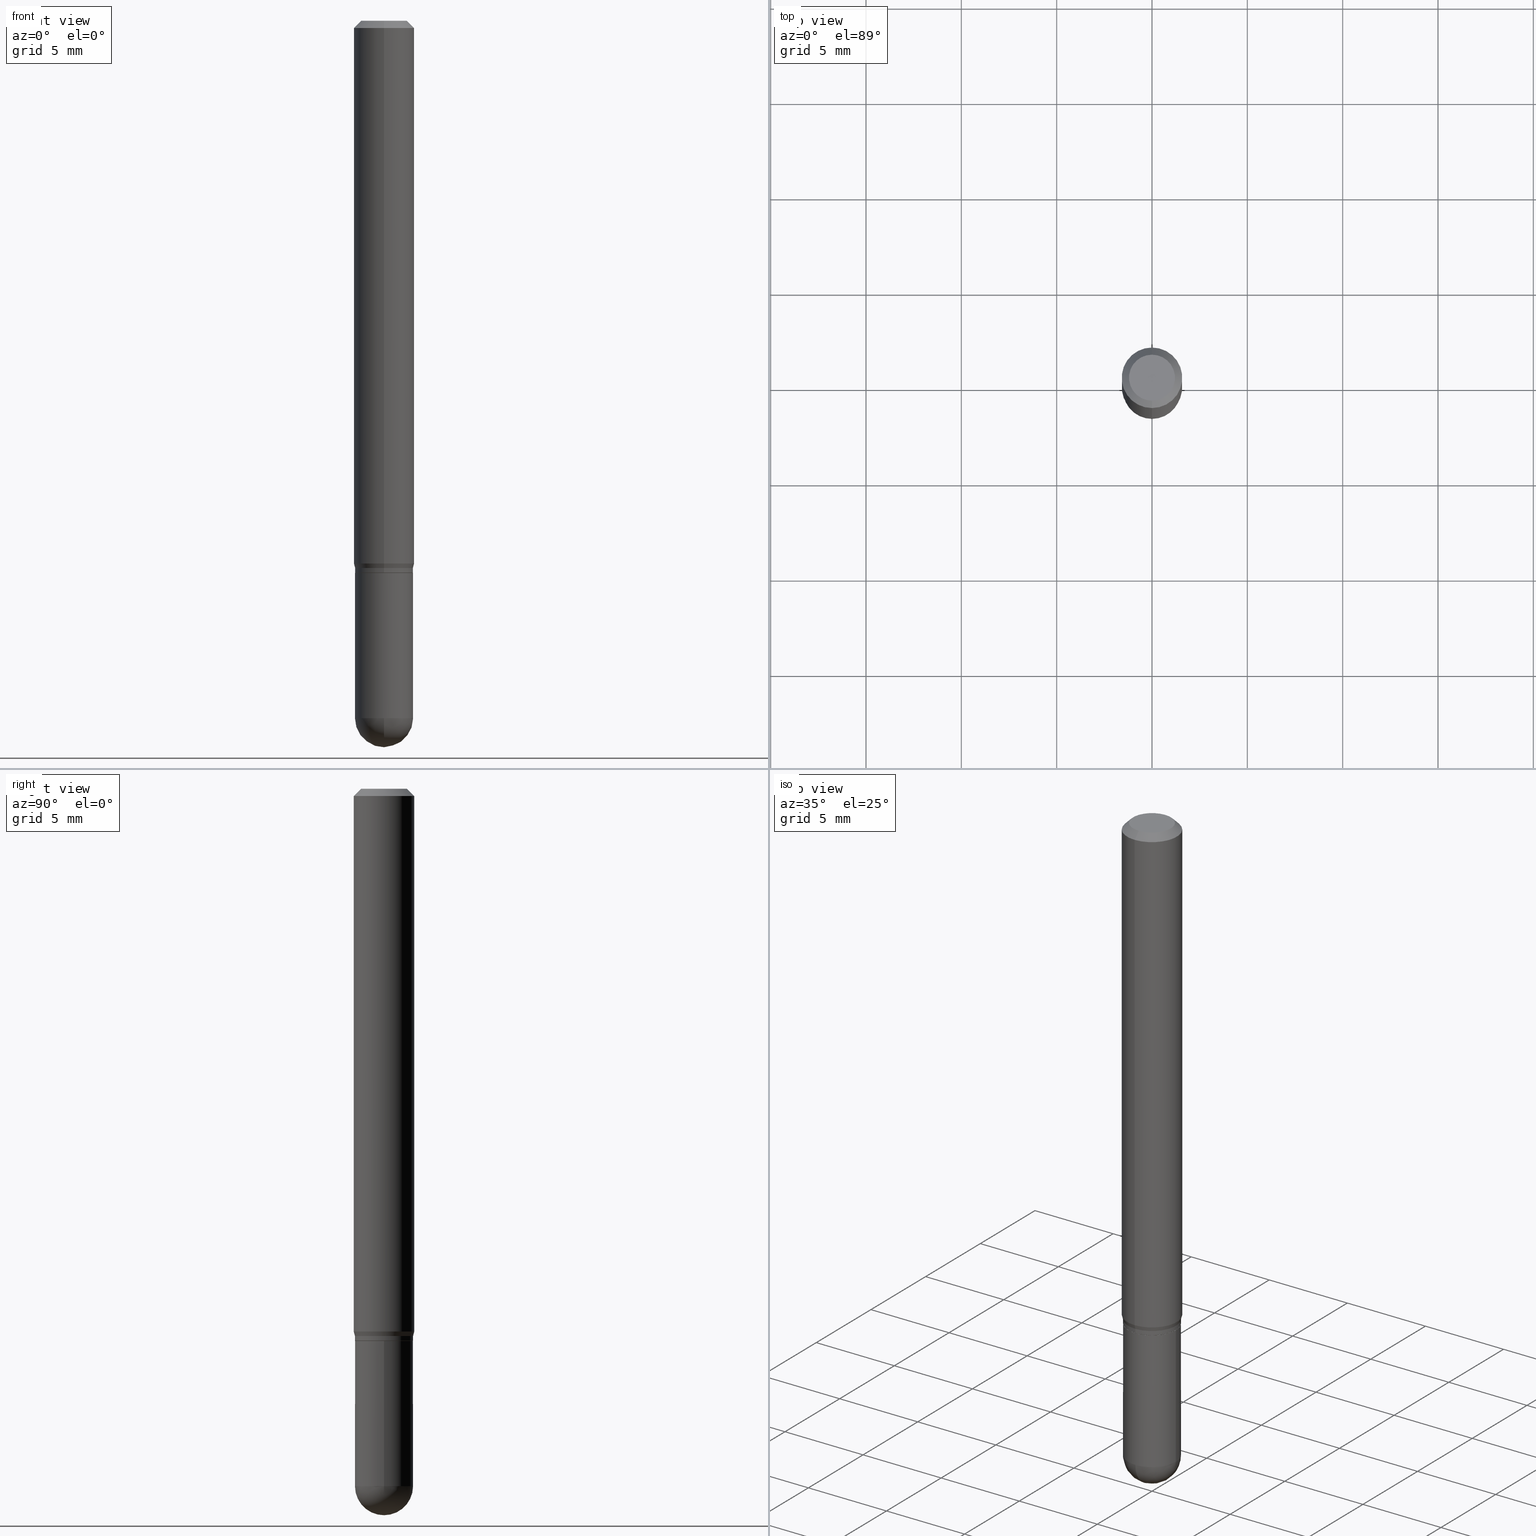
[diagram: canonical four-view strip — front | top / right | iso, engineering-drawing reading convention]
A machine part, canonical four-view strip (front | top / right | iso — engineering-drawing reading convention). The complete STEP part file that produces these views, byte-faithful:
ISO-10303-21;
HEADER;
FILE_DESCRIPTION (( 'STEP AP203' ),
    '1' );
FILE_NAME ('00880.STEP',
    '2024-03-07T18:39:57',
    ( '' ),
    ( '' ),
    'SwSTEP 2.0',
    'SolidWorks 2023',
    '' );
FILE_SCHEMA (( 'CONFIG_CONTROL_DESIGN' ));
ENDSEC;

DATA;
#1 = DIRECTION ( 'NONE',  ( 5.024295867788190974E-15, 0.7071067811865681119, 0.7071067811865270336 ) ) ;
#2 = CIRCLE ( 'NONE', #315, 0.05999999999999995615 ) ;
#3 = ORIENTED_EDGE ( 'NONE', *, *, #213, .T. ) ;
#4 = EDGE_CURVE ( 'NONE', #70, #86, #448, .T. ) ;
#5 = EDGE_LOOP ( 'NONE', ( #34, #107, #204, #280 ) ) ;
#6 = DIRECTION ( 'NONE',  ( -6.982962677686265922E-15, -1.000000000000000000, 4.553079989440434359E-15 ) ) ;
#7 = CIRCLE ( 'NONE', #22, 0.06250000000000000000 ) ;
#8 = VECTOR ( 'NONE', #494, 39.37007874015748143 ) ;
#9 = EDGE_CURVE ( 'NONE', #66, #164, #314, .T. ) ;
#10 = APPLICATION_CONTEXT ( 'configuration controlled 3d designs of mechanical parts and assemblies' ) ;
#11 = ORIENTED_EDGE ( 'NONE', *, *, #277, .F. ) ;
#12 = CARTESIAN_POINT ( 'NONE',  ( 2.788007565382676486E-29, -3.980040799520567158E-15, -1.140000000000000124 ) ) ;
#13 = ORIENTED_EDGE ( 'NONE', *, *, #277, .T. ) ;
#14 = PLANE ( 'NONE',  #305 ) ;
#15 = CIRCLE ( 'NONE', #23, 0.06250000000000000000 ) ;
#16 = DIRECTION ( 'NONE',  ( -2.445620671388312269E-29, 3.491263859228567350E-15, 1.000000000000000000 ) ) ;
#17 = DIRECTION ( 'NONE',  ( -6.982962677686265922E-15, -1.000000000000000000, 3.491263859228566956E-15 ) ) ;
#18 = CARTESIAN_POINT ( 'NONE',  ( 4.189777606612038494E-16, 0.05999999999999602179, -1.140000000000000346 ) ) ;
#19 = DIRECTION ( 'NONE',  ( 0.000000000000000000, 0.000000000000000000, 1.000000000000000000 ) ) ;
#20 = DIRECTION ( 'NONE',  ( 1.000000000000000000, -6.982962677686266711E-15, 0.000000000000000000 ) ) ;
#21 = EDGE_CURVE ( 'NONE', #402, #235, #7, .T. ) ;
#22 = AXIS2_PLACEMENT_3D ( 'NONE', #129, #252, #48 ) ;
#23 = AXIS2_PLACEMENT_3D ( 'NONE', #65, #383, #63 ) ;
#24 = DIRECTION ( 'NONE',  ( 1.000000000000000000, -6.982962677686268288E-15, 0.000000000000000000 ) ) ;
#25 = PERSON_AND_ORGANIZATION ( #304, #41 ) ;
#26 = FACE_OUTER_BOUND ( 'NONE', #409, .T. ) ;
#27 = DIRECTION ( 'NONE',  ( -6.982962677686266711E-15, -1.000000000000000000, 3.491263859228568139E-15 ) ) ;
#28 = CC_DESIGN_PERSON_AND_ORGANIZATION_ASSIGNMENT ( #219, #293, ( #31 ) ) ;
#29 = ADVANCED_FACE ( 'NONE', ( #248 ), #14, .F. ) ;
#30 = DIRECTION ( 'NONE',  ( -2.445468806185136597E-29, 3.491481338843145583E-15, 1.000000000000000000 ) ) ;
#31 = PRODUCT ( '00880', '00880', '', ( #286 ) ) ;
#32 = VERTEX_POINT ( 'NONE', #335 ) ;
#33 = CARTESIAN_POINT ( 'NONE',  ( 2.788007565382676486E-29, -3.980040799520567158E-15, -1.140000000000000124 ) ) ;
#34 = ORIENTED_EDGE ( 'NONE', *, *, #365, .F. ) ;
#35 = ORIENTED_EDGE ( 'NONE', *, *, #90, .T. ) ;
#36 = CARTESIAN_POINT ( 'NONE',  ( 2.763551358668793427E-29, -3.945128160928281627E-15, -1.130000000000000115 ) ) ;
#37 = AXIS2_PLACEMENT_3D ( 'NONE', #469, #142, #268 ) ;
#38 = ORIENTED_EDGE ( 'NONE', *, *, #120, .F. ) ;
#39 = CARTESIAN_POINT ( 'NONE',  ( 0.05999999999999999778, -4.399266486942362543E-15, -1.140000000000000124 ) ) ;
#40 = ORIENTED_EDGE ( 'NONE', *, *, #471, .T. ) ;
#41 = ORGANIZATION ( 'UNSPECIFIED', 'UNSPECIFIED', '' ) ;
#42 = EDGE_LOOP ( 'NONE', ( #167, #200, #394, #493 ) ) ;
#43 = ORIENTED_EDGE ( 'NONE', *, *, #62, .F. ) ;
#44 = ORIENTED_EDGE ( 'NONE', *, *, #266, .F. ) ;
#45 = ORIENTED_EDGE ( 'NONE', *, *, #266, .T. ) ;
#46 = EDGE_CURVE ( 'NONE', #164, #32, #371, .T. ) ;
#47 = PRODUCT_DEFINITION_FORMATION_WITH_SPECIFIED_SOURCE ( 'ANY', '', #31, .NOT_KNOWN. ) ;
#48 = DIRECTION ( 'NONE',  ( -6.982962677686265922E-15, -1.000000000000000000, 3.483106191921935554E-15 ) ) ;
#49 = VECTOR ( 'NONE', #95, 39.37007874015748143 ) ;
#50 = ORIENTED_EDGE ( 'NONE', *, *, #193, .F. ) ;
#51 = LINE ( 'NONE', #260, #430 ) ;
#52 = EDGE_CURVE ( 'NONE', #417, #425, #188, .T. ) ;
#53 = DIRECTION ( 'NONE',  ( -2.445620671388312549E-29, 3.491263859228567350E-15, 1.000000000000000000 ) ) ;
#54 = PERSON_AND_ORGANIZATION ( #304, #41 ) ;
#55 = CARTESIAN_POINT ( 'NONE',  ( 0.000000000000000000, 0.000000000000000000, 0.000000000000000000 ) ) ;
#56 = SECURITY_CLASSIFICATION ( '', '', #262 ) ;
#57 = VERTEX_POINT ( 'NONE', #215 ) ;
#58 = VECTOR ( 'NONE', #472, 39.37007874015748143 ) ;
#59 = APPROVAL_DATE_TIME ( #419, #323 ) ;
#60 = APPLICATION_PROTOCOL_DEFINITION ( 'international standard', 'config_control_design', 1994, #10 ) ;
#61 = CARTESIAN_POINT ( 'NONE',  ( 0.06000000000000001166, -4.922988687768835701E-15, -1.440000000000000169 ) ) ;
#62 = EDGE_CURVE ( 'NONE', #86, #402, #440, .T. ) ;
#63 = DIRECTION ( 'NONE',  ( -6.982962677686265922E-15, -1.000000000000000000, 3.483106191921935554E-15 ) ) ;
#64 = COORDINATED_UNIVERSAL_TIME_OFFSET ( 5, 0, .BEHIND. ) ;
#65 = CARTESIAN_POINT ( 'NONE',  ( 3.668431007082470996E-31, -5.236895788842854378E-17, -0.01500000000000000812 ) ) ;
#66 = VERTEX_POINT ( 'NONE', #172 ) ;
#67 = AXIS2_PLACEMENT_3D ( 'NONE', #326, #485, #124 ) ;
#68 = DIRECTION ( 'NONE',  ( 1.000000000000000000, -6.982962677686266711E-15, 0.000000000000000000 ) ) ;
#69 = PRODUCT_DEFINITION_SHAPE ( 'NONE', 'NONE',  #159 ) ;
#70 = VERTEX_POINT ( 'NONE', #492 ) ;
#71 = CARTESIAN_POINT ( 'NONE',  ( 4.364351673553919652E-16, 0.06249999999999995143, -0.01500000000000022669 ) ) ;
#72 = ADVANCED_FACE ( 'NONE', ( #79 ), #131, .F. ) ;
#73 = EDGE_LOOP ( 'NONE', ( #470, #352, #45, #434 ) ) ;
#74 = ORIENTED_EDGE ( 'NONE', *, *, #249, .T. ) ;
#75 = CIRCLE ( 'NONE', #475, 0.06000000000000001166 ) ;
#76 = ORIENTED_EDGE ( 'NONE', *, *, #249, .F. ) ;
#77 = ADVANCED_FACE ( 'NONE', ( #452 ), #294, .T. ) ;
#78 = EDGE_CURVE ( 'NONE', #194, #476, #367, .T. ) ;
#79 = FACE_OUTER_BOUND ( 'NONE', #317, .T. ) ;
#80 = DIRECTION ( 'NONE',  ( -1.000000000000000000, 7.105427357601001070E-15, -4.926315508542082329E-29 ) ) ;
#81 = AXIS2_PLACEMENT_3D ( 'NONE', #370, #334, #85 ) ;
#82 = VERTEX_POINT ( 'NONE', #61 ) ;
#83 = CIRCLE ( 'NONE', #306, 0.05999999999999995615 ) ;
#84 = ORIENTED_EDGE ( 'NONE', *, *, #210, .T. ) ;
#85 = DIRECTION ( 'NONE',  ( 6.982962677686265922E-15, 1.000000000000000000, -3.483106191921935554E-15 ) ) ;
#86 = VERTEX_POINT ( 'NONE', #187 ) ;
#87 = CARTESIAN_POINT ( 'NONE',  ( 3.840629472727447874E-16, 0.04749999999999999362, -1.747056831868805136E-16 ) ) ;
#88 = DIRECTION ( 'NONE',  ( 1.000000000000000000, -6.982962677686266711E-15, 0.000000000000000000 ) ) ;
#89 = VECTOR ( 'NONE', #145, 39.37007874015748143 ) ;
#90 = EDGE_CURVE ( 'NONE', #247, #32, #214, .T. ) ;
#91 = ADVANCED_FACE ( 'NONE', ( #336 ), #222, .T. ) ;
#92 = CARTESIAN_POINT ( 'NONE',  ( 3.521475080906597305E-29, -5.027733127934130649E-15, -1.440000000000000169 ) ) ;
#93 = LINE ( 'NONE', #501, #8 ) ;
#94 = DATE_AND_TIME ( #138, #474 ) ;
#95 = DIRECTION ( 'NONE',  ( -2.445620671388312269E-29, 3.491263859228567350E-15, 1.000000000000000000 ) ) ;
#96 = DIRECTION ( 'NONE',  ( -2.445468806185136877E-29, 3.491481338843145188E-15, 1.000000000000000000 ) ) ;
#97 = COORDINATED_UNIVERSAL_TIME_OFFSET ( 5, 0, .BEHIND. ) ;
#98 = DIRECTION ( 'NONE',  ( -2.445620671388312549E-29, 3.491263859228567350E-15, 1.000000000000000000 ) ) ;
#99 = APPROVAL_PERSON_ORGANIZATION ( #54, #323, #141 ) ;
#100 = ADVANCED_FACE ( 'NONE', ( #344 ), #102, .T. ) ;
#101 = CARTESIAN_POINT ( 'NONE',  ( 4.245492846166878976E-16, 0.05949999999999602135, -1.140000000000000346 ) ) ;
#102 = CONICAL_SURFACE ( 'NONE', #189, 0.06000000000000019901, 0.2617993877991505181 ) ;
#103 = PERSON_AND_ORGANIZATION_ROLE ( 'design_supplier' ) ;
#104 = DIRECTION ( 'NONE',  ( -6.982962677686265922E-15, -1.000000000000000000, 3.491263859228567350E-15 ) ) ;
#105 = DATE_AND_TIME ( #505, #127 ) ;
#106 = CARTESIAN_POINT ( 'NONE',  ( 4.352074256530896070E-16, 0.05999999999999625078, -1.130000000000000338 ) ) ;
#107 = ORIENTED_EDGE ( 'NONE', *, *, #230, .T. ) ;
#108 = DIRECTION ( 'NONE',  ( -6.982962677686265922E-15, -1.000000000000000000, 4.591341165822291216E-15 ) ) ;
#109 = LOCAL_TIME ( 13, 39, 57.00000000000000000, #346 ) ;
#110 = EDGE_LOOP ( 'NONE', ( #40, #289, #504, #43 ) ) ;
#111 = VECTOR ( 'NONE', #16, 39.37007874015748143 ) ;
#112 = AXIS2_PLACEMENT_3D ( 'NONE', #239, #229, #195 ) ;
#113 = FACE_OUTER_BOUND ( 'NONE', #42, .T. ) ;
#114 = ORIENTED_EDGE ( 'NONE', *, *, #78, .T. ) ;
#115 = FACE_OUTER_BOUND ( 'NONE', #356, .T. ) ;
#116 = ORIENTED_EDGE ( 'NONE', *, *, #332, .F. ) ;
#117 = CARTESIAN_POINT ( 'NONE',  ( -4.263256414560247449E-16, -0.06000000000000501460, -1.439999999999999947 ) ) ;
#118 = DIRECTION ( 'NONE',  ( -6.982962677686265922E-15, -1.000000000000000000, 4.591341165822291216E-15 ) ) ;
#119 = APPROVAL ( #308, 'UNSPECIFIED' ) ;
#120 = EDGE_CURVE ( 'NONE', #32, #247, #156, .T. ) ;
#121 = ORIENTED_EDGE ( 'NONE', *, *, #46, .T. ) ;
#122 = CARTESIAN_POINT ( 'NONE',  ( 3.521475080906597305E-29, -5.027733127934130649E-15, -1.440000000000000169 ) ) ;
#123 = CONICAL_SURFACE ( 'NONE', #350, 0.06250000000000000000, 0.7853981633974483900 ) ;
#124 = DIRECTION ( 'NONE',  ( -6.982962677686265922E-15, -1.000000000000000000, 4.591341165822291216E-15 ) ) ;
#125 = EDGE_LOOP ( 'NONE', ( #153, #473, #431, #50 ) ) ;
#126 = ORIENTED_EDGE ( 'NONE', *, *, #471, .F. ) ;
#127 = LOCAL_TIME ( 13, 39, 57.00000000000000000, #376 ) ;
#128 = AXIS2_PLACEMENT_3D ( 'NONE', #333, #488, #399 ) ;
#129 = CARTESIAN_POINT ( 'NONE',  ( 3.668431007082470996E-31, -5.236895788842854378E-17, -0.01500000000000000812 ) ) ;
#130 = CARTESIAN_POINT ( 'NONE',  ( 0.06000000000000001166, -4.189777606611760914E-16, 2.925706065477562106E-30 ) ) ;
#131 = PLANE ( 'NONE',  #401 ) ;
#132 = EDGE_CURVE ( 'NONE', #194, #402, #342, .T. ) ;
#133 = APPROVAL_ROLE ( '' ) ;
#134 = FACE_OUTER_BOUND ( 'NONE', #407, .T. ) ;
#135 = CYLINDRICAL_SURFACE ( 'NONE', #37, 0.06000000000000001166 ) ;
#136 = AXIS2_PLACEMENT_3D ( 'NONE', #459, #139, #181 ) ;
#137 = DIRECTION ( 'NONE',  ( -2.445620671388312549E-29, 3.491263859228567350E-15, 1.000000000000000000 ) ) ;
#138 = CALENDAR_DATE ( 2024, 7, 3 ) ;
#139 = DIRECTION ( 'NONE',  ( -2.445620671388312549E-29, 3.491263859228567350E-15, 1.000000000000000000 ) ) ;
#140 = CARTESIAN_POINT ( 'NONE',  ( 0.000000000000000000, 0.000000000000000000, 0.000000000000000000 ) ) ;
#141 = APPROVAL_ROLE ( '' ) ;
#142 = DIRECTION ( 'NONE',  ( -2.445468806185136597E-29, 3.491481338843145583E-15, 1.000000000000000000 ) ) ;
#143 = CARTESIAN_POINT ( 'NONE',  ( 2.763551358668793427E-29, -3.945128160928281627E-15, -1.130000000000000115 ) ) ;
#144 = APPROVAL_DATE_TIME ( #105, #119 ) ;
#145 = DIRECTION ( 'NONE',  ( -4.851104656540964275E-15, -0.7071067811865500152, -0.7071067811865450192 ) ) ;
#146 = EDGE_CURVE ( 'NONE', #57, #235, #349, .T. ) ;
#147 = AXIS2_PLACEMENT_3D ( 'NONE', #338, #290, #450 ) ;
#148 = AXIS2_PLACEMENT_3D ( 'NONE', #481, #357, #198 ) ;
#149 = APPLICATION_PROTOCOL_DEFINITION ( 'international standard', 'config_control_design', 1994, #339 ) ;
#150 = CARTESIAN_POINT ( 'NONE',  ( 2.787834439051055989E-29, -3.980288726281186698E-15, -1.140000000000000124 ) ) ;
#151 = ORIENTED_EDGE ( 'NONE', *, *, #174, .F. ) ;
#152 = FACE_OUTER_BOUND ( 'NONE', #412, .T. ) ;
#153 = ORIENTED_EDGE ( 'NONE', *, *, #146, .F. ) ;
#154 = APPROVAL_PERSON_ORGANIZATION ( #343, #119, #468 ) ;
#155 = ORIENTED_EDGE ( 'NONE', *, *, #132, .F. ) ;
#156 = CIRCLE ( 'NONE', #296, 0.05999999999999999778 ) ;
#157 = VERTEX_POINT ( 'NONE', #106 ) ;
#158 = CARTESIAN_POINT ( 'NONE',  ( -4.154862793223048825E-16, -0.05950000000000398026, -1.139999999999999902 ) ) ;
#159 = PRODUCT_DEFINITION ( 'UNKNOWN', '', #47, #496 ) ;
#160 = DIRECTION ( 'NONE',  ( -6.982962677686265922E-15, -1.000000000000000000, 4.553079989440434359E-15 ) ) ;
#161 = ORIENTED_EDGE ( 'NONE', *, *, #9, .T. ) ;
#162 = CARTESIAN_POINT ( 'NONE',  ( 2.786784755046982108E-29, -3.978295167590952960E-15, -1.139500000000000179 ) ) ;
#163 = VECTOR ( 'NONE', #1, 39.37007874015748143 ) ;
#164 = VERTEX_POINT ( 'NONE', #263 ) ;
#165 = CC_DESIGN_DATE_AND_TIME_ASSIGNMENT ( #94, #414, ( #56 ) ) ;
#166 = ADVANCED_FACE ( 'NONE', ( #503 ), #135, .T. ) ;
#167 = ORIENTED_EDGE ( 'NONE', *, *, #78, .F. ) ;
#168 = CIRCLE ( 'NONE', #464, 0.06000000000000006023 ) ;
#169 =( CONVERSION_BASED_UNIT ( 'INCH', #254 ) LENGTH_UNIT ( ) NAMED_UNIT ( #408 ) );
#170 = VECTOR ( 'NONE', #285, 39.37007874015748854 ) ;
#171 = DIRECTION ( 'NONE',  ( -2.445468806185136877E-29, 3.491481338843145188E-15, 1.000000000000000000 ) ) ;
#172 = CARTESIAN_POINT ( 'NONE',  ( 4.189777606612110478E-16, 0.05999999999999495320, -1.440000000000000391 ) ) ;
#173 = CC_DESIGN_PERSON_AND_ORGANIZATION_ASSIGNMENT ( #423, #340, ( #56 ) ) ;
#174 = EDGE_CURVE ( 'NONE', #57, #86, #403, .T. ) ;
#175 = LINE ( 'NONE', #130, #341 ) ;
#176 = CARTESIAN_POINT ( 'NONE',  ( 2.763551358668793427E-29, -3.945128160928281627E-15, -1.130000000000000115 ) ) ;
#177 = DIRECTION ( 'NONE',  ( -6.982962677686265922E-15, -1.000000000000000000, 4.553079989440423315E-15 ) ) ;
#178 = DATE_AND_TIME ( #184, #109 ) ;
#179 = DIRECTION ( 'NONE',  ( 1.000000000000000000, 0.000000000000000000, 0.000000000000000000 ) ) ;
#180 = LOCAL_TIME ( 13, 39, 57.00000000000000000, #454 ) ;
#181 = DIRECTION ( 'NONE',  ( -6.982962677686266711E-15, -1.000000000000000000, 3.491263859228568139E-15 ) ) ;
#182 = CARTESIAN_POINT ( 'NONE',  ( 3.516344083171520973E-29, -5.035081008729014505E-15, -1.440000000000000169 ) ) ;
#183 = DIRECTION ( 'NONE',  ( 1.000000000000000000, -6.982962677686268288E-15, 0.000000000000000000 ) ) ;
#184 = CALENDAR_DATE ( 2024, 7, 3 ) ;
#185 = ADVANCED_FACE ( 'NONE', ( #467 ), #457, .T. ) ;
#186 = CYLINDRICAL_SURFACE ( 'NONE', #360, 0.06000000000000001166 ) ;
#187 = CARTESIAN_POINT ( 'NONE',  ( -4.364351673553640100E-16, -0.06250000000000388578, -1.120669872981078452 ) ) ;
#188 = CIRCLE ( 'NONE', #128, 0.05949999999999999734 ) ;
#189 = AXIS2_PLACEMENT_3D ( 'NONE', #176, #98, #228 ) ;
#190 = DATE_TIME_ROLE ( 'creation_date' ) ;
#191 =( NAMED_UNIT ( * ) SI_UNIT ( $, .STERADIAN. ) SOLID_ANGLE_UNIT ( ) );
#192 = CARTESIAN_POINT ( 'NONE',  ( 3.665637710410167850E-29, -5.240895948662160894E-15, -1.500000000000000222 ) ) ;
#193 = EDGE_CURVE ( 'NONE', #235, #402, #15, .T. ) ;
#194 = VERTEX_POINT ( 'NONE', #231 ) ;
#195 = DIRECTION ( 'NONE',  ( 6.982962677686265922E-15, 1.000000000000000000, -4.553079989440442247E-15 ) ) ;
#196 = DIRECTION ( 'NONE',  ( -2.445620671388312549E-29, 3.491263859228567350E-15, 1.000000000000000000 ) ) ;
#197 = ORIENTED_EDGE ( 'NONE', *, *, #52, .F. ) ;
#198 = DIRECTION ( 'NONE',  ( 1.000000000000000000, -6.982962677686266711E-15, 0.000000000000000000 ) ) ;
#199 = LINE ( 'NONE', #319, #163 ) ;
#200 = ORIENTED_EDGE ( 'NONE', *, *, #132, .T. ) ;
#201 = AXIS2_PLACEMENT_3D ( 'NONE', #33, #439, #313 ) ;
#202 = ADVANCED_FACE ( 'NONE', ( #385 ), #499, .T. ) ;
#203 = ORIENTED_EDGE ( 'NONE', *, *, #258, .T. ) ;
#204 = ORIENTED_EDGE ( 'NONE', *, *, #210, .F. ) ;
#205 = CARTESIAN_POINT ( 'NONE',  ( 4.263256414560887906E-16, 0.05999999999999614669, -1.139500000000000401 ) ) ;
#206 = AXIS2_PLACEMENT_3D ( 'NONE', #413, #421, #378 ) ;
#207 = CONICAL_SURFACE ( 'NONE', #331, 0.05949999999999999734, 0.7853981633974739252 ) ;
#208 = DIRECTION ( 'NONE',  ( 2.438088387897960049E-29, -3.491481338843145188E-15, -1.000000000000000000 ) ) ;
#209 = DIRECTION ( 'NONE',  ( -7.105427357601001070E-15, -1.000000000000000000, 0.000000000000000000 ) ) ;
#210 = EDGE_CURVE ( 'NONE', #82, #66, #420, .T. ) ;
#211 = CARTESIAN_POINT ( 'NONE',  ( 3.316907271900976096E-16, 0.04749999999999999362, -1.702703582501187023E-16 ) ) ;
#212 = DIRECTION ( 'NONE',  ( 6.982962677686265922E-15, 1.000000000000000000, -3.491263859228567350E-15 ) ) ;
#213 = EDGE_CURVE ( 'NONE', #157, #57, #51, .T. ) ;
#214 = CIRCLE ( 'NONE', #429, 0.05999999999999999778 ) ;
#215 = CARTESIAN_POINT ( 'NONE',  ( 4.440892098500901277E-16, 0.06249999999999610728, -1.120669872981078896 ) ) ;
#216 = CIRCLE ( 'NONE', #233, 0.04749999999999999362 ) ;
#217 = CARTESIAN_POINT ( 'NONE',  ( 3.521475080906597305E-29, -5.027733127934130649E-15, -1.440000000000000169 ) ) ;
#218 = DIRECTION ( 'NONE',  ( 6.982962677686265922E-15, 1.000000000000000000, -4.553079989440442247E-15 ) ) ;
#219 = PERSON_AND_ORGANIZATION ( #304, #41 ) ;
#220 = CARTESIAN_POINT ( 'NONE',  ( 2.787834439051055989E-29, -3.980288726281186698E-15, -1.140000000000000124 ) ) ;
#221 = APPROVAL_STATUS ( 'not_yet_approved' ) ;
#222 = CYLINDRICAL_SURFACE ( 'NONE', #206, 0.06000000000000012962 ) ;
#223 = VECTOR ( 'NONE', #171, 39.37007874015748143 ) ;
#224 = EDGE_LOOP ( 'NONE', ( #278, #114 ) ) ;
#225 = CARTESIAN_POINT ( 'NONE',  ( 3.516344083171520973E-29, -5.035081008729014505E-15, -1.440000000000000169 ) ) ;
#226 = CARTESIAN_POINT ( 'NONE',  ( -4.154862793223048825E-16, -0.05950000000000398026, -1.139999999999999902 ) ) ;
#227 = PERSON_AND_ORGANIZATION ( #304, #41 ) ;
#228 = DIRECTION ( 'NONE',  ( -6.982962677686265922E-15, -1.000000000000000000, 4.553079989440423315E-15 ) ) ;
#229 = DIRECTION ( 'NONE',  ( -1.000000000000000000, 6.982962677686265922E-15, -4.883557194083112340E-29 ) ) ;
#230 = EDGE_CURVE ( 'NONE', #245, #66, #2, .T. ) ;
#231 = CARTESIAN_POINT ( 'NONE',  ( -3.773273898774340269E-16, -0.04749999999999999362, 1.569643834398333176E-16 ) ) ;
#232 = EDGE_LOOP ( 'NONE', ( #368, #203, #479, #374, #38 ) ) ;
#233 = AXIS2_PLACEMENT_3D ( 'NONE', #382, #137, #27 ) ;
#234 = CARTESIAN_POINT ( 'NONE',  ( -4.189777606611768802E-16, -0.06000000000000012962, 2.094758315537144710E-16 ) ) ;
#235 = VERTEX_POINT ( 'NONE', #380 ) ;
#236 = EDGE_LOOP ( 'NONE', ( #446, #197 ) ) ;
#237 = CC_DESIGN_APPROVAL ( #298, ( #47 ) ) ;
#238 = ORIENTED_EDGE ( 'NONE', *, *, #489, .F. ) ;
#239 = CARTESIAN_POINT ( 'NONE',  ( 3.516344083171520973E-29, -5.035081008729014505E-15, -1.440000000000000169 ) ) ;
#240 = ADVANCED_FACE ( 'NONE', ( #26 ), #186, .T. ) ;
#241 = AXIS2_PLACEMENT_3D ( 'NONE', #217, #487, #88 ) ;
#242 = ORIENTED_EDGE ( 'NONE', *, *, #426, .F. ) ;
#243 = DIRECTION ( 'NONE',  ( -6.982962677686265922E-15, -1.000000000000000000, 4.553079989440423315E-15 ) ) ;
#244 = MANIFOLD_SOLID_BREP ( 'Body-Move/Copy2[1]', #443 ) ;
#245 = VERTEX_POINT ( 'NONE', #192 ) ;
#246 =( NAMED_UNIT ( * ) PLANE_ANGLE_UNIT ( ) SI_UNIT ( $, .RADIAN. ) );
#247 = VERTEX_POINT ( 'NONE', #39 ) ;
#248 = FACE_OUTER_BOUND ( 'NONE', #224, .T. ) ;
#249 = EDGE_CURVE ( 'NONE', #70, #157, #281, .T. ) ;
#250 = ORIENTED_EDGE ( 'NONE', *, *, #365, .T. ) ;
#251 = CC_DESIGN_APPROVAL ( #323, ( #56 ) ) ;
#252 = DIRECTION ( 'NONE',  ( -2.445620671388312549E-29, 3.491263859228567350E-15, 1.000000000000000000 ) ) ;
#253 = AXIS2_PLACEMENT_3D ( 'NONE', #36, #196, #282 ) ;
#254 = LENGTH_MEASURE_WITH_UNIT ( LENGTH_MEASURE( 0.02539999999999999897 ), #328 );
#255 = DIRECTION ( 'NONE',  ( -2.445468806185136597E-29, 3.491481338843145583E-15, 1.000000000000000000 ) ) ;
#256 = DATE_AND_TIME ( #465, #180 ) ;
#257 = DIRECTION ( 'NONE',  ( 1.839019923739601893E-15, 0.2588190451025252359, 0.9659258262890670910 ) ) ;
#258 = EDGE_CURVE ( 'NONE', #164, #320, #75, .T. ) ;
#259 = CALENDAR_DATE ( 2024, 7, 3 ) ;
#260 = CARTESIAN_POINT ( 'NONE',  ( 4.263256414560890864E-16, 0.05999999999999625078, -1.130000000000000338 ) ) ;
#261 = AXIS2_PLACEMENT_3D ( 'NONE', #92, #255, #20 ) ;
#262 = SECURITY_CLASSIFICATION_LEVEL ( 'unclassified' ) ;
#263 = CARTESIAN_POINT ( 'NONE',  ( -0.06000000000000001166, -4.077685285651599366E-15, -1.440000000000000169 ) ) ;
#264 = EDGE_CURVE ( 'NONE', #425, #397, #478, .T. ) ;
#265 = FACE_OUTER_BOUND ( 'NONE', #5, .T. ) ;
#266 = EDGE_CURVE ( 'NONE', #397, #70, #388, .T. ) ;
#267 = APPROVAL_STATUS ( 'not_yet_approved' ) ;
#268 = DIRECTION ( 'NONE',  ( 1.000000000000000000, -6.982962677686266711E-15, 4.876176775795935793E-29 ) ) ;
#269 = ORIENTED_EDGE ( 'NONE', *, *, #264, .F. ) ;
#270 = LINE ( 'NONE', #71, #484 ) ;
#271 = AXIS2_PLACEMENT_3D ( 'NONE', #377, #19, #179 ) ;
#272 = AXIS2_PLACEMENT_3D ( 'NONE', #143, #463, #177 ) ;
#273 = ORIENTED_EDGE ( 'NONE', *, *, #52, .T. ) ;
#274 = FACE_OUTER_BOUND ( 'NONE', #438, .T. ) ;
#275 = DIRECTION ( 'NONE',  ( -2.445620671388312549E-29, 3.491263859228567350E-15, 1.000000000000000000 ) ) ;
#276 = ORIENTED_EDGE ( 'NONE', *, *, #4, .F. ) ;
#277 = EDGE_CURVE ( 'NONE', #417, #363, #199, .T. ) ;
#278 = ORIENTED_EDGE ( 'NONE', *, *, #426, .T. ) ;
#279 = DIRECTION ( 'NONE',  ( 2.445620671388312549E-29, -3.491263859228567350E-15, -1.000000000000000000 ) ) ;
#280 = ORIENTED_EDGE ( 'NONE', *, *, #375, .F. ) ;
#281 = CIRCLE ( 'NONE', #253, 0.06000000000000019901 ) ;
#282 = DIRECTION ( 'NONE',  ( -6.982962677686265922E-15, -1.000000000000000000, 4.553079989440423315E-15 ) ) ;
#283 = UNCERTAINTY_MEASURE_WITH_UNIT (LENGTH_MEASURE( 1.000000000000000082E-05 ), #169, 'distance_accuracy_value', 'NONE');
#284 = ORIENTED_EDGE ( 'NONE', *, *, #451, .F. ) ;
#285 = DIRECTION ( 'NONE',  ( -1.807323732225331717E-15, -0.2588190451025184080, 0.9659258262890689783 ) ) ;
#286 = MECHANICAL_CONTEXT ( 'NONE', #10, 'mechanical' ) ;
#287 = AXIS2_PLACEMENT_3D ( 'NONE', #300, #462, #303 ) ;
#288 = ORIENTED_EDGE ( 'NONE', *, *, #4, .T. ) ;
#289 = ORIENTED_EDGE ( 'NONE', *, *, #146, .T. ) ;
#290 = DIRECTION ( 'NONE',  ( -2.445620671388312549E-29, 3.491263859228567350E-15, 1.000000000000000000 ) ) ;
#291 = DIRECTION ( 'NONE',  ( -1.000000000000000000, 6.982962677686265922E-15, -4.876176775795935793E-29 ) ) ;
#292 = LOCAL_TIME ( 13, 39, 57.00000000000000000, #97 ) ;
#293 = PERSON_AND_ORGANIZATION_ROLE ( 'design_owner' ) ;
#294 = CONICAL_SURFACE ( 'NONE', #67, 0.05949999999999999734, 0.7853981633974739252 ) ;
#295 = DIRECTION ( 'NONE',  ( -6.982962677686265922E-15, -1.000000000000000000, 4.370956789862821150E-15 ) ) ;
#296 = AXIS2_PLACEMENT_3D ( 'NONE', #150, #309, #24 ) ;
#297 = PERSON_AND_ORGANIZATION ( #304, #41 ) ;
#298 = APPROVAL ( #267, 'UNSPECIFIED' ) ;
#299 = ADVANCED_FACE ( 'NONE', ( #364 ), #362, .F. ) ;
#300 = CARTESIAN_POINT ( 'NONE',  ( 0.000000000000000000, 0.000000000000000000, 0.000000000000000000 ) ) ;
#301 = DIRECTION ( 'NONE',  ( -1.000000000000000000, 6.982962677686265922E-15, -4.883557194083112340E-29 ) ) ;
#302 = DIRECTION ( 'NONE',  ( -2.445620671388312549E-29, 3.491263859228567350E-15, 1.000000000000000000 ) ) ;
#303 = DIRECTION ( 'NONE',  ( -6.982962677686265922E-15, -1.000000000000000000, 3.491263859228567350E-15 ) ) ;
#304 = PERSON ( 'UNSPECIFIED', 'UNSPECIFIED', 'UNSPECIFIED', ('UNSPECIFIED'), ('UNSPECIFIED'), ('UNSPECIFIED') ) ;
#305 = AXIS2_PLACEMENT_3D ( 'NONE', #211, #404, #212 ) ;
#306 = AXIS2_PLACEMENT_3D ( 'NONE', #416, #80, #209 ) ;
#307 = ADVANCED_FACE ( 'NONE', ( #115 ), #207, .T. ) ;
#308 = APPROVAL_STATUS ( 'not_yet_approved' ) ;
#309 = DIRECTION ( 'NONE',  ( -2.445468806185136597E-29, 3.491481338843145583E-15, 1.000000000000000000 ) ) ;
#310 = ORIENTED_EDGE ( 'NONE', *, *, #490, .T. ) ;
#311 = DIRECTION ( 'NONE',  ( -2.445468806185136597E-29, 3.491481338843145583E-15, 1.000000000000000000 ) ) ;
#312 = EDGE_LOOP ( 'NONE', ( #379, #366, #76, #44 ) ) ;
#313 = DIRECTION ( 'NONE',  ( -6.982962677686265922E-15, -1.000000000000000000, 3.491263859228567350E-15 ) ) ;
#314 = CIRCLE ( 'NONE', #241, 0.06000000000000001166 ) ;
#315 = AXIS2_PLACEMENT_3D ( 'NONE', #225, #381, #415 ) ;
#316 = ORIENTED_EDGE ( 'NONE', *, *, #230, .F. ) ;
#317 = EDGE_LOOP ( 'NONE', ( #35, #390 ) ) ;
#318 = CARTESIAN_POINT ( 'NONE',  ( -4.364351673553912750E-16, -0.06250000000000005551, -0.01499999999999979128 ) ) ;
#319 = CARTESIAN_POINT ( 'NONE',  ( 4.227729277772874483E-16, 0.05949999999999602135, -1.140000000000000346 ) ) ;
#320 = VERTEX_POINT ( 'NONE', #117 ) ;
#321 = CARTESIAN_POINT ( 'NONE',  ( 2.763551358668793427E-29, -3.945128160928281627E-15, -1.130000000000000115 ) ) ;
#322 = CC_DESIGN_SECURITY_CLASSIFICATION ( #56, ( #47 ) ) ;
#323 = APPROVAL ( #221, 'UNSPECIFIED' ) ;
#324 = ADVANCED_FACE ( 'NONE', ( #113 ), #123, .T. ) ;
#325 = AXIS2_PLACEMENT_3D ( 'NONE', #182, #301, #218 ) ;
#326 = CARTESIAN_POINT ( 'NONE',  ( 2.788007565382676486E-29, -3.980040799520567158E-15, -1.140000000000000124 ) ) ;
#327 = ORIENTED_EDGE ( 'NONE', *, *, #193, .T. ) ;
#328 =( LENGTH_UNIT ( ) NAMED_UNIT ( * ) SI_UNIT ( $, .METRE. ) );
#329 = ORIENTED_EDGE ( 'NONE', *, *, #90, .F. ) ;
#330 = APPROVAL_PERSON_ORGANIZATION ( #227, #298, #133 ) ;
#331 = AXIS2_PLACEMENT_3D ( 'NONE', #480, #275, #108 ) ;
#332 = EDGE_CURVE ( 'NONE', #397, #363, #393, .T. ) ;
#333 = CARTESIAN_POINT ( 'NONE',  ( 2.788007565382676486E-29, -3.980040799520567158E-15, -1.140000000000000124 ) ) ;
#334 = DIRECTION ( 'NONE',  ( 2.445620671388312549E-29, -3.491263859228567350E-15, -1.000000000000000000 ) ) ;
#335 = CARTESIAN_POINT ( 'NONE',  ( -0.05999999999999999778, -4.077685285651597789E-15, -1.140000000000000124 ) ) ;
#336 = FACE_OUTER_BOUND ( 'NONE', #312, .T. ) ;
#337 = CC_DESIGN_PERSON_AND_ORGANIZATION_ASSIGNMENT ( #25, #498, ( #159 ) ) ;
#338 = CARTESIAN_POINT ( 'NONE',  ( 2.740733407164640186E-29, -3.912554225665108422E-15, -1.120669872981078674 ) ) ;
#339 = APPLICATION_CONTEXT ( 'configuration controlled 3d designs of mechanical parts and assemblies' ) ;
#340 = PERSON_AND_ORGANIZATION_ROLE ( 'classification_officer' ) ;
#341 = VECTOR ( 'NONE', #96, 39.37007874015748143 ) ;
#342 = LINE ( 'NONE', #495, #89 ) ;
#343 = PERSON_AND_ORGANIZATION ( #304, #41 ) ;
#344 = FACE_OUTER_BOUND ( 'NONE', #433, .T. ) ;
#345 = SPHERICAL_SURFACE ( 'NONE', #325, 0.05999999999999995615 ) ;
#346 = COORDINATED_UNIVERSAL_TIME_OFFSET ( 5, 0, .BEHIND. ) ;
#347 = ADVANCED_FACE ( 'NONE', ( #152 ), #410, .T. ) ;
#348 = CARTESIAN_POINT ( 'NONE',  ( 2.740733407164640186E-29, -3.912554225665108422E-15, -1.120669872981078674 ) ) ;
#349 = LINE ( 'NONE', #508, #49 ) ;
#350 = AXIS2_PLACEMENT_3D ( 'NONE', #432, #279, #351 ) ;
#351 = DIRECTION ( 'NONE',  ( 6.982962677686265922E-15, 1.000000000000000000, -3.483106191921935554E-15 ) ) ;
#352 = ORIENTED_EDGE ( 'NONE', *, *, #489, .T. ) ;
#353 = CARTESIAN_POINT ( 'NONE',  ( -4.189777606611479882E-16, -0.06000000000000396683, -1.139499999999999735 ) ) ;
#354 = SHAPE_DEFINITION_REPRESENTATION ( #69, #500 ) ;
#355 = DIRECTION ( 'NONE',  ( -2.445620671388312549E-29, 3.491263859228567350E-15, 1.000000000000000000 ) ) ;
#356 = EDGE_LOOP ( 'NONE', ( #310, #13, #116, #269 ) ) ;
#357 = DIRECTION ( 'NONE',  ( -2.445468806185136597E-29, 3.491481338843145583E-15, 1.000000000000000000 ) ) ;
#358 = EDGE_CURVE ( 'NONE', #476, #235, #270, .T. ) ;
#359 = CLOSED_SHELL ( 'NONE', ( #91, #307, #324, #202, #347, #100, #185, #509, #29, #299, #77, #441 ) ) ;
#360 = AXIS2_PLACEMENT_3D ( 'NONE', #506, #422, #483 ) ;
#361 = EDGE_LOOP ( 'NONE', ( #11, #273, #511, #238 ) ) ;
#362 = PLANE ( 'NONE',  #201 ) ;
#363 = VERTEX_POINT ( 'NONE', #205 ) ;
#364 = FACE_OUTER_BOUND ( 'NONE', #236, .T. ) ;
#365 = EDGE_CURVE ( 'NONE', #245, #320, #83, .T. ) ;
#366 = ORIENTED_EDGE ( 'NONE', *, *, #427, .T. ) ;
#367 = CIRCLE ( 'NONE', #136, 0.04749999999999999362 ) ;
#368 = ORIENTED_EDGE ( 'NONE', *, *, #46, .F. ) ;
#369 = CARTESIAN_POINT ( 'NONE',  ( -0.06000000000000001166, 4.263256414560601944E-16, -2.951361054152943763E-30 ) ) ;
#370 = CARTESIAN_POINT ( 'NONE',  ( 3.668431007082470996E-31, -5.236895788842854378E-17, -0.01500000000000000812 ) ) ;
#371 = LINE ( 'NONE', #369, #223 ) ;
#372 = AXIS2_PLACEMENT_3D ( 'NONE', #321, #355, #243 ) ;
#373 = CARTESIAN_POINT ( 'NONE',  ( -4.364351673553916201E-16, -0.06250000000000000000, 2.182039912017854594E-16 ) ) ;
#374 = ORIENTED_EDGE ( 'NONE', *, *, #451, .T. ) ;
#375 = EDGE_CURVE ( 'NONE', #320, #82, #497, .T. ) ;
#376 = COORDINATED_UNIVERSAL_TIME_OFFSET ( 5, 0, .BEHIND. ) ;
#377 = CARTESIAN_POINT ( 'NONE',  ( 0.000000000000000000, 0.000000000000000000, 0.000000000000000000 ) ) ;
#378 = DIRECTION ( 'NONE',  ( -6.982962677686265922E-15, -1.000000000000000000, 3.491263859228566956E-15 ) ) ;
#379 = ORIENTED_EDGE ( 'NONE', *, *, #332, .T. ) ;
#380 = CARTESIAN_POINT ( 'NONE',  ( 4.440892098500901277E-16, 0.06249999999999995143, -0.01500000000000022669 ) ) ;
#381 = DIRECTION ( 'NONE',  ( 1.000000000000000000, -6.982962677686265922E-15, 4.883557194083112340E-29 ) ) ;
#382 = CARTESIAN_POINT ( 'NONE',  ( 2.169424469933737165E-46, -3.096977931130331649E-32, -8.870649873523574904E-18 ) ) ;
#383 = DIRECTION ( 'NONE',  ( -2.445620671388312549E-29, 3.491263859228567350E-15, 1.000000000000000000 ) ) ;
#384 = CIRCLE ( 'NONE', #418, 0.05949999999999999734 ) ;
#385 = FACE_OUTER_BOUND ( 'NONE', #110, .T. ) ;
#386 = AXIS2_PLACEMENT_3D ( 'NONE', #55, #424, #104 ) ;
#387 = ORIENTED_EDGE ( 'NONE', *, *, #358, .T. ) ;
#388 = LINE ( 'NONE', #234, #58 ) ;
#389 = CC_DESIGN_DATE_AND_TIME_ASSIGNMENT ( #178, #190, ( #159 ) ) ;
#390 = ORIENTED_EDGE ( 'NONE', *, *, #120, .T. ) ;
#391 = ORIENTED_EDGE ( 'NONE', *, *, #9, .F. ) ;
#392 =( GEOMETRIC_REPRESENTATION_CONTEXT ( 3 ) GLOBAL_UNCERTAINTY_ASSIGNED_CONTEXT ( ( #283 ) ) GLOBAL_UNIT_ASSIGNED_CONTEXT ( ( #169, #246, #191 ) ) REPRESENTATION_CONTEXT ( 'NONE', 'WORKASPACE' ) );
#393 = CIRCLE ( 'NONE', #466, 0.06000000000000006023 ) ;
#394 = ORIENTED_EDGE ( 'NONE', *, *, #21, .T. ) ;
#395 = CC_DESIGN_PERSON_AND_ORGANIZATION_ASSIGNMENT ( #297, #458, ( #47 ) ) ;
#396 = ADVANCED_FACE ( 'NONE', ( #265 ), #477, .T. ) ;
#397 = VERTEX_POINT ( 'NONE', #353 ) ;
#398 = MANIFOLD_SOLID_BREP ( 'Body-Move/Copy2[2]', #359 ) ;
#399 = DIRECTION ( 'NONE',  ( -6.982962677686265922E-15, -1.000000000000000000, 4.591341165822291216E-15 ) ) ;
#400 = AXIS2_PLACEMENT_3D ( 'NONE', #140, #53, #17 ) ;
#401 = AXIS2_PLACEMENT_3D ( 'NONE', #18, #208, #291 ) ;
#402 = VERTEX_POINT ( 'NONE', #318 ) ;
#403 = CIRCLE ( 'NONE', #444, 0.06250000000000000000 ) ;
#404 = DIRECTION ( 'NONE',  ( 2.445620671388311989E-29, -3.491263859228567350E-15, -1.000000000000000000 ) ) ;
#405 = PRODUCT_RELATED_PRODUCT_CATEGORY ( 'detail', '', ( #31 ) ) ;
#406 = ADVANCED_FACE ( 'NONE', ( #274 ), #345, .T. ) ;
#407 = EDGE_LOOP ( 'NONE', ( #155, #242, #387, #327 ) ) ;
#408 = DIMENSIONAL_EXPONENTS ( 1.000000000000000000, 0.000000000000000000, 0.000000000000000000, 0.000000000000000000, 0.000000000000000000, 0.000000000000000000, 0.000000000000000000 ) ;
#409 = EDGE_LOOP ( 'NONE', ( #161, #121, #329, #284, #84 ) ) ;
#410 = CONICAL_SURFACE ( 'NONE', #372, 0.06000000000000019901, 0.2617993877991505181 ) ;
#411 = EDGE_CURVE ( 'NONE', #157, #70, #437, .T. ) ;
#412 = EDGE_LOOP ( 'NONE', ( #74, #3, #126, #276 ) ) ;
#413 = CARTESIAN_POINT ( 'NONE',  ( 0.000000000000000000, 0.000000000000000000, 0.000000000000000000 ) ) ;
#414 = DATE_TIME_ROLE ( 'classification_date' ) ;
#415 = DIRECTION ( 'NONE',  ( 6.982962677686265922E-15, 1.000000000000000000, 0.000000000000000000 ) ) ;
#416 = CARTESIAN_POINT ( 'NONE',  ( 3.516344083171520973E-29, -5.035081008729014505E-15, -1.440000000000000169 ) ) ;
#417 = VERTEX_POINT ( 'NONE', #101 ) ;
#418 = AXIS2_PLACEMENT_3D ( 'NONE', #12, #456, #118 ) ;
#419 = DATE_AND_TIME ( #259, #292 ) ;
#420 = CIRCLE ( 'NONE', #261, 0.06000000000000001166 ) ;
#421 = DIRECTION ( 'NONE',  ( -2.445620671388312549E-29, 3.491263859228567350E-15, 1.000000000000000000 ) ) ;
#422 = DIRECTION ( 'NONE',  ( -2.445468806185136597E-29, 3.491481338843145583E-15, 1.000000000000000000 ) ) ;
#423 = PERSON_AND_ORGANIZATION ( #304, #41 ) ;
#424 = DIRECTION ( 'NONE',  ( -2.445620671388312549E-29, 3.491263859228567350E-15, 1.000000000000000000 ) ) ;
#425 = VERTEX_POINT ( 'NONE', #226 ) ;
#426 = EDGE_CURVE ( 'NONE', #476, #194, #216, .T. ) ;
#427 = EDGE_CURVE ( 'NONE', #363, #157, #93, .T. ) ;
#428 = DIRECTION ( 'NONE',  ( 4.937700262164548042E-15, 0.7071067811865451302, -0.7071067811865499042 ) ) ;
#429 = AXIS2_PLACEMENT_3D ( 'NONE', #220, #30, #183 ) ;
#430 = VECTOR ( 'NONE', #257, 39.37007874015748854 ) ;
#431 = ORIENTED_EDGE ( 'NONE', *, *, #62, .T. ) ;
#432 = CARTESIAN_POINT ( 'NONE',  ( 3.668431007082470996E-31, -5.236895788842854378E-17, -0.01500000000000000812 ) ) ;
#433 = EDGE_LOOP ( 'NONE', ( #482, #486, #288, #151 ) ) ;
#434 = ORIENTED_EDGE ( 'NONE', *, *, #411, .F. ) ;
#435 = DIRECTION ( 'NONE',  ( -2.445620671388312549E-29, 3.491263859228567350E-15, 1.000000000000000000 ) ) ;
#436 = CC_DESIGN_APPROVAL ( #119, ( #159 ) ) ;
#437 = CIRCLE ( 'NONE', #272, 0.06000000000000019901 ) ;
#438 = EDGE_LOOP ( 'NONE', ( #316, #250, #512, #391 ) ) ;
#439 = DIRECTION ( 'NONE',  ( -2.445620671388311989E-29, 3.491263859228567350E-15, 1.000000000000000000 ) ) ;
#440 = LINE ( 'NONE', #373, #111 ) ;
#441 = ADVANCED_FACE ( 'NONE', ( #460 ), #491, .T. ) ;
#442 = CARTESIAN_POINT ( 'NONE',  ( -4.189777606611496152E-16, -0.06000000000000414030, -1.129999999999999893 ) ) ;
#443 = CLOSED_SHELL ( 'NONE', ( #240, #406, #72, #396, #166 ) ) ;
#444 = AXIS2_PLACEMENT_3D ( 'NONE', #348, #302, #295 ) ;
#445 = DIRECTION ( 'NONE',  ( -2.445620671388312549E-29, 3.491263859228567350E-15, 1.000000000000000000 ) ) ;
#446 = ORIENTED_EDGE ( 'NONE', *, *, #490, .F. ) ;
#447 = CARTESIAN_POINT ( 'NONE',  ( 2.786784755046982108E-29, -3.978295167590952960E-15, -1.139500000000000179 ) ) ;
#448 = LINE ( 'NONE', #442, #170 ) ;
#449 = CC_DESIGN_PERSON_AND_ORGANIZATION_ASSIGNMENT ( #461, #103, ( #47 ) ) ;
#450 = DIRECTION ( 'NONE',  ( -6.982962677686265922E-15, -1.000000000000000000, 4.370956789862821150E-15 ) ) ;
#451 = EDGE_CURVE ( 'NONE', #82, #247, #175, .T. ) ;
#452 = FACE_OUTER_BOUND ( 'NONE', #361, .T. ) ;
#453 = CIRCLE ( 'NONE', #147, 0.06250000000000000000 ) ;
#454 = COORDINATED_UNIVERSAL_TIME_OFFSET ( 5, 0, .BEHIND. ) ;
#455 = VECTOR ( 'NONE', #510, 39.37007874015748143 ) ;
#456 = DIRECTION ( 'NONE',  ( -2.445620671388312549E-29, 3.491263859228567350E-15, 1.000000000000000000 ) ) ;
#457 = CYLINDRICAL_SURFACE ( 'NONE', #386, 0.06250000000000000000 ) ;
#458 = PERSON_AND_ORGANIZATION_ROLE ( 'creator' ) ;
#459 = CARTESIAN_POINT ( 'NONE',  ( 2.169424469933737165E-46, -3.096977931130331649E-32, -8.870649873523574904E-18 ) ) ;
#460 = FACE_OUTER_BOUND ( 'NONE', #73, .T. ) ;
#461 = PERSON_AND_ORGANIZATION ( #304, #41 ) ;
#462 = DIRECTION ( 'NONE',  ( -2.445620671388312549E-29, 3.491263859228567350E-15, 1.000000000000000000 ) ) ;
#463 = DIRECTION ( 'NONE',  ( -2.445620671388312549E-29, 3.491263859228567350E-15, 1.000000000000000000 ) ) ;
#464 = AXIS2_PLACEMENT_3D ( 'NONE', #447, #445, #160 ) ;
#465 = CALENDAR_DATE ( 2024, 7, 3 ) ;
#466 = AXIS2_PLACEMENT_3D ( 'NONE', #162, #435, #6 ) ;
#467 = FACE_OUTER_BOUND ( 'NONE', #125, .T. ) ;
#468 = APPROVAL_ROLE ( '' ) ;
#469 = CARTESIAN_POINT ( 'NONE',  ( 0.000000000000000000, 0.000000000000000000, 0.000000000000000000 ) ) ;
#470 = ORIENTED_EDGE ( 'NONE', *, *, #427, .F. ) ;
#471 = EDGE_CURVE ( 'NONE', #86, #57, #453, .T. ) ;
#472 = DIRECTION ( 'NONE',  ( -2.445620671388312269E-29, 3.491263859228567350E-15, 1.000000000000000000 ) ) ;
#473 = ORIENTED_EDGE ( 'NONE', *, *, #174, .T. ) ;
#474 = LOCAL_TIME ( 13, 39, 57.00000000000000000, #64 ) ;
#475 = AXIS2_PLACEMENT_3D ( 'NONE', #122, #311, #68 ) ;
#476 = VERTEX_POINT ( 'NONE', #87 ) ;
#477 = SPHERICAL_SURFACE ( 'NONE', #112, 0.05999999999999995615 ) ;
#478 = LINE ( 'NONE', #158, #455 ) ;
#479 = ORIENTED_EDGE ( 'NONE', *, *, #375, .T. ) ;
#480 = CARTESIAN_POINT ( 'NONE',  ( 2.788007565382676486E-29, -3.980040799520567158E-15, -1.140000000000000124 ) ) ;
#481 = CARTESIAN_POINT ( 'NONE',  ( 3.521475080906597305E-29, -5.027733127934130649E-15, -1.440000000000000169 ) ) ;
#482 = ORIENTED_EDGE ( 'NONE', *, *, #213, .F. ) ;
#483 = DIRECTION ( 'NONE',  ( 1.000000000000000000, -6.982962677686266711E-15, 4.876176775795935793E-29 ) ) ;
#484 = VECTOR ( 'NONE', #428, 39.37007874015748143 ) ;
#485 = DIRECTION ( 'NONE',  ( -2.445620671388312549E-29, 3.491263859228567350E-15, 1.000000000000000000 ) ) ;
#486 = ORIENTED_EDGE ( 'NONE', *, *, #411, .T. ) ;
#487 = DIRECTION ( 'NONE',  ( -2.445468806185136597E-29, 3.491481338843145583E-15, 1.000000000000000000 ) ) ;
#488 = DIRECTION ( 'NONE',  ( -2.445620671388312549E-29, 3.491263859228567350E-15, 1.000000000000000000 ) ) ;
#489 = EDGE_CURVE ( 'NONE', #363, #397, #168, .T. ) ;
#490 = EDGE_CURVE ( 'NONE', #425, #417, #384, .T. ) ;
#491 = CYLINDRICAL_SURFACE ( 'NONE', #400, 0.06000000000000012962 ) ;
#492 = CARTESIAN_POINT ( 'NONE',  ( -4.189777606611496152E-16, -0.06000000000000414030, -1.129999999999999893 ) ) ;
#493 = ORIENTED_EDGE ( 'NONE', *, *, #358, .F. ) ;
#494 = DIRECTION ( 'NONE',  ( -2.445620671388312269E-29, 3.491263859228567350E-15, 1.000000000000000000 ) ) ;
#495 = CARTESIAN_POINT ( 'NONE',  ( -4.287811248607203282E-16, -0.06250000000000005551, -0.01499999999999979128 ) ) ;
#496 = DESIGN_CONTEXT ( 'detailed design', #339, 'design' ) ;
#497 = CIRCLE ( 'NONE', #148, 0.06000000000000001166 ) ;
#498 = PERSON_AND_ORGANIZATION_ROLE ( 'creator' ) ;
#499 = CYLINDRICAL_SURFACE ( 'NONE', #287, 0.06250000000000000000 ) ;
#500 = ADVANCED_BREP_SHAPE_REPRESENTATION ( '00880', ( #244, #398, #271 ), #392 ) ;
#501 = CARTESIAN_POINT ( 'NONE',  ( 4.263256414560609832E-16, 0.06000000000000012962, -2.094758315537144710E-16 ) ) ;
#502 = APPROVAL_DATE_TIME ( #256, #298 ) ;
#503 = FACE_OUTER_BOUND ( 'NONE', #232, .T. ) ;
#504 = ORIENTED_EDGE ( 'NONE', *, *, #21, .F. ) ;
#505 = CALENDAR_DATE ( 2024, 7, 3 ) ;
#506 = CARTESIAN_POINT ( 'NONE',  ( 0.000000000000000000, 0.000000000000000000, 0.000000000000000000 ) ) ;
#507 = CONICAL_SURFACE ( 'NONE', #81, 0.06250000000000000000, 0.7853981633974483900 ) ;
#508 = CARTESIAN_POINT ( 'NONE',  ( 4.440892098500625669E-16, 0.06250000000000000000, -2.182039912017854594E-16 ) ) ;
#509 = ADVANCED_FACE ( 'NONE', ( #134 ), #507, .T. ) ;
#510 = DIRECTION ( 'NONE',  ( -4.937700262164674260E-15, -0.7071067811865632269, 0.7071067811865319186 ) ) ;
#511 = ORIENTED_EDGE ( 'NONE', *, *, #264, .T. ) ;
#512 = ORIENTED_EDGE ( 'NONE', *, *, #258, .F. ) ;
ENDSEC;
END-ISO-10303-21;
